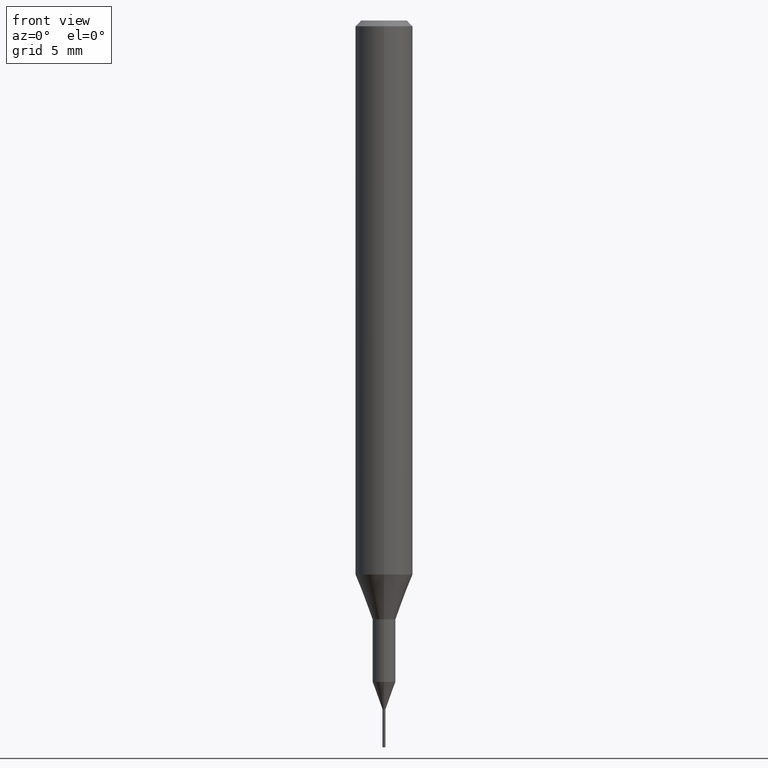
[diagram: clean part render]
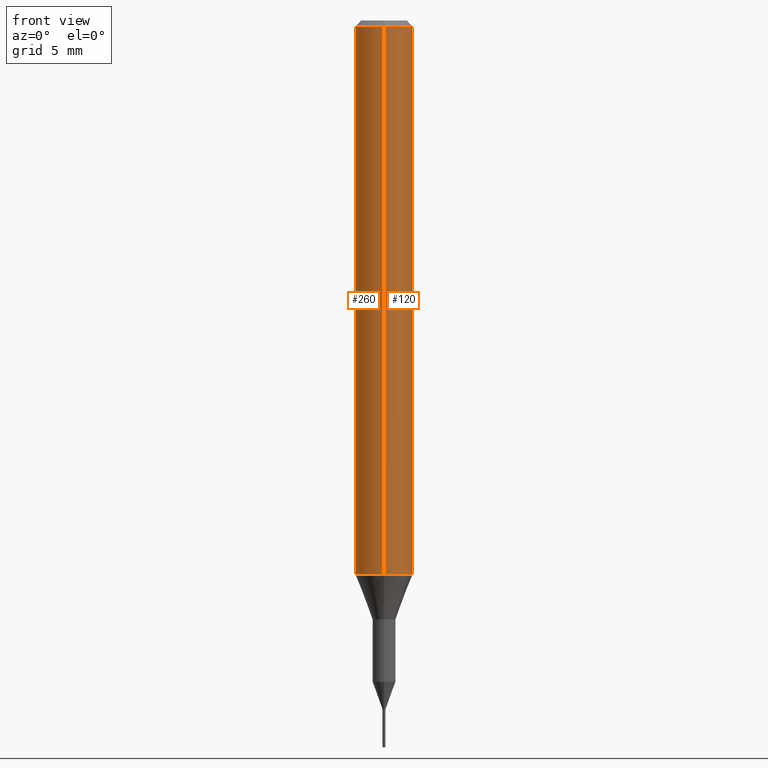
[diagram: same view with one multi-face feature highlighted, each face labeled with its STEP entity id]
A machine part, front view. The highlighted faces form ONE feature: a constant-radius fillet chain: 2 tangent blend faces with common blend radius 1.5 mm. The faces share edges in the B-rep.
Their STEP definitions:
[1] entity #120 (Cylinder):
#120=ADVANCED_FACE('',(#300),#301,.T.);
#140=VERTEX_POINT('',#322);
#144=EDGE_CURVE('',#252,#232,#327,.T.);
#150=EDGE_CURVE('',#140,#218,#333,.T.);
#154=EDGE_CURVE('',#252,#140,#337,.T.);
#218=VERTEX_POINT('',#411);
#232=VERTEX_POINT('',#426);
#252=VERTEX_POINT('',#447);
#266=EDGE_CURVE('',#218,#232,#464,.T.);
#300=FACE_OUTER_BOUND('',#491,.T.);
#301=CYLINDRICAL_SURFACE('',#492,1.5);
#322=CARTESIAN_POINT('',(0.0,1.5,-28.955));
#327=CIRCLE('',#526,1.5);
#333=CIRCLE('',#536,1.5);
#337=LINE('',#542,#543);
#411=CARTESIAN_POINT('',(1.83690953073357E-016,-1.5,-28.955));
#426=CARTESIAN_POINT('',(1.83690953073357E-016,-1.5,-0.300000000000001));
#447=CARTESIAN_POINT('',(0.0,1.5,-0.300000000000001));
#464=LINE('',#703,#704);
#491=EDGE_LOOP('',(#733,#734,#735,#736));
#492=AXIS2_PLACEMENT_3D('',#737,#738,#739);
#526=AXIS2_PLACEMENT_3D('',#762,#763,#764);
#536=AXIS2_PLACEMENT_3D('',#769,#770,#771);
#542=CARTESIAN_POINT('',(-1.83690953073357E-016,1.5,-14.6275));
#543=VECTOR('',#775,1.0);
#703=CARTESIAN_POINT('',(1.83690953073357E-016,-1.5,-14.6275));
#704=VECTOR('',#937,1.0);
#733=ORIENTED_EDGE('',*,*,#154,.F.);
#734=ORIENTED_EDGE('',*,*,#144,.T.);
#735=ORIENTED_EDGE('',*,*,#266,.F.);
#736=ORIENTED_EDGE('',*,*,#150,.F.);
#737=CARTESIAN_POINT('',(0.0,0.0,-14.6275));
#738=DIRECTION('',(-0.0,-0.0,1.0));
#739=DIRECTION('',(0.0,1.0,0.0));
#762=CARTESIAN_POINT('',(0.0,0.0,-0.300000000000001));
#763=DIRECTION('',(0.0,0.0,-1.0));
#764=DIRECTION('',(0.0,1.0,0.0));
#769=CARTESIAN_POINT('',(0.0,0.0,-28.955));
#770=DIRECTION('',(0.0,0.0,-1.0));
#771=DIRECTION('',(0.0,1.0,0.0));
#775=DIRECTION('',(0.0,0.0,-1.0));
#937=DIRECTION('',(-0.0,-0.0,1.0));
[2] entity #260 (Cylinder):
#140=VERTEX_POINT('',#322);
#152=EDGE_CURVE('',#232,#252,#335,.T.);
#154=EDGE_CURVE('',#252,#140,#337,.T.);
#204=EDGE_CURVE('',#218,#140,#396,.T.);
#218=VERTEX_POINT('',#411);
#232=VERTEX_POINT('',#426);
#252=VERTEX_POINT('',#447);
#260=ADVANCED_FACE('',(#456),#457,.T.);
#266=EDGE_CURVE('',#218,#232,#464,.T.);
#322=CARTESIAN_POINT('',(0.0,1.5,-28.955));
#335=CIRCLE('',#539,1.5);
#337=LINE('',#542,#543);
#396=CIRCLE('',#615,1.5);
#411=CARTESIAN_POINT('',(1.83690953073357E-016,-1.5,-28.955));
#426=CARTESIAN_POINT('',(1.83690953073357E-016,-1.5,-0.300000000000001));
#447=CARTESIAN_POINT('',(0.0,1.5,-0.300000000000001));
#456=FACE_OUTER_BOUND('',#694,.T.);
#457=CYLINDRICAL_SURFACE('',#695,1.5);
#464=LINE('',#703,#704);
#539=AXIS2_PLACEMENT_3D('',#772,#773,#774);
#542=CARTESIAN_POINT('',(-1.83690953073357E-016,1.5,-14.6275));
#543=VECTOR('',#775,1.0);
#615=AXIS2_PLACEMENT_3D('',#864,#865,#866);
#694=EDGE_LOOP('',(#924,#925,#926,#927));
#695=AXIS2_PLACEMENT_3D('',#928,#929,#930);
#703=CARTESIAN_POINT('',(1.83690953073357E-016,-1.5,-14.6275));
#704=VECTOR('',#937,1.0);
#772=CARTESIAN_POINT('',(0.0,0.0,-0.300000000000001));
#773=DIRECTION('',(0.0,0.0,-1.0));
#774=DIRECTION('',(0.0,1.0,0.0));
#775=DIRECTION('',(0.0,0.0,-1.0));
#864=CARTESIAN_POINT('',(0.0,0.0,-28.955));
#865=DIRECTION('',(0.0,0.0,-1.0));
#866=DIRECTION('',(0.0,1.0,0.0));
#924=ORIENTED_EDGE('',*,*,#154,.T.);
#925=ORIENTED_EDGE('',*,*,#204,.F.);
#926=ORIENTED_EDGE('',*,*,#266,.T.);
#927=ORIENTED_EDGE('',*,*,#152,.T.);
#928=CARTESIAN_POINT('',(0.0,0.0,-14.6275));
#929=DIRECTION('',(-0.0,-0.0,1.0));
#930=DIRECTION('',(0.0,1.0,0.0));
#937=DIRECTION('',(-0.0,-0.0,1.0));